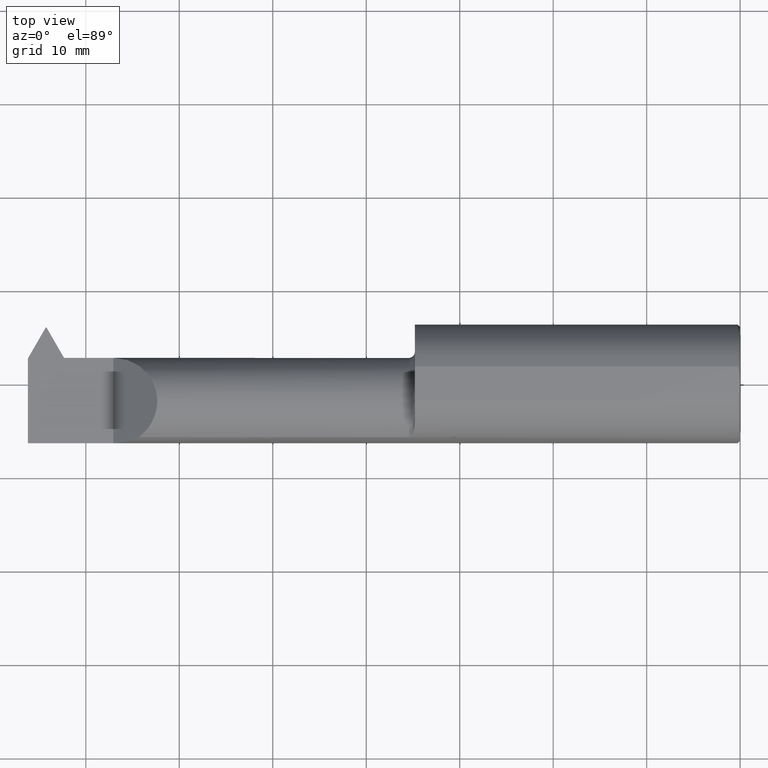
[diagram: clean part render]
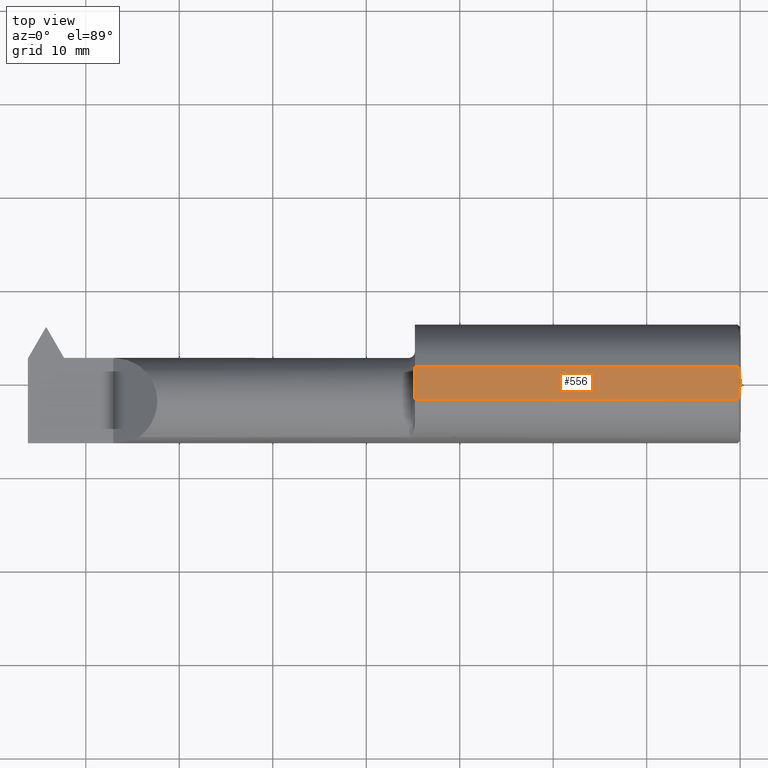
[diagram: same view with one face highlighted and labeled with its STEP entity id]
A machine part, top view. The second image highlights one B-rep face of the part: STEP entity #556.
In plain terms, the highlighted planar face has unit normal (-0, 0, -1).
Its self-contained STEP definition (entity closure, byte-faithful):
#6 = EDGE_CURVE ( 'NONE', #542, #715, #551, .T. ) ;
#17 = VECTOR ( 'NONE', #572, 39.37007874015748143 ) ;
#20 = CARTESIAN_POINT ( 'NONE',  ( -0.009999999999999620304, 0.06997856814768398104, 0.2398500000000000076 ) ) ;
#95 = LINE ( 'NONE', #445, #17 ) ;
#100 = VERTEX_POINT ( 'NONE', #20 ) ;
#165 = CARTESIAN_POINT ( 'NONE',  ( 5.733229207650684486E-16, 0.01185524990370578555, 0.2398500000000000631 ) ) ;
#168 = CARTESIAN_POINT ( 'NONE',  ( -6.745148754278355005E-33, 3.731796911060679279E-16, 0.2398500000000000631 ) ) ;
#169 = CARTESIAN_POINT ( 'NONE',  ( -0.004312611582161834413, 0.04712320684214399424, 0.2398500000000000631 ) ) ;
#208 = EDGE_CURVE ( 'NONE', #386, #561, #434, .T. ) ;
#222 = VECTOR ( 'NONE', #361, 39.37007874015748143 ) ;
#230 = CARTESIAN_POINT ( 'NONE',  ( -0.006805225572346869367, -0.05857201308550646218, 0.2398500000000000631 ) ) ;
#234 = CARTESIAN_POINT ( 'NONE',  ( -0.0008810604711147574731, -0.02359329477404692454, 0.2398500000000000631 ) ) ;
#255 = DIRECTION ( 'NONE',  ( 9.422009876951564852E-18, 1.000000000000000000, 1.242426775361223693E-16 ) ) ;
#265 = EDGE_CURVE ( 'NONE', #100, #561, #95, .T. ) ;
#300 = DIRECTION ( 'NONE',  ( 0.000000000000000000, 1.000000000000000000, 1.242426775361223693E-16 ) ) ;
#306 = ORIENTED_EDGE ( 'NONE', *, *, #367, .T. ) ;
#361 = DIRECTION ( 'NONE',  ( 1.000000000000000000, 1.224646799147351482E-16, -0.000000000000000000 ) ) ;
#367 = EDGE_CURVE ( 'NONE', #386, #542, #761, .T. ) ;
#386 = VERTEX_POINT ( 'NONE', #584 ) ;
#394 = ORIENTED_EDGE ( 'NONE', *, *, #265, .T. ) ;
#405 = CARTESIAN_POINT ( 'NONE',  ( -0.006819279375477977842, 0.05862219048703239122, 0.2398500000000000631 ) ) ;
#434 = LINE ( 'NONE', #670, #559 ) ;
#441 = PLANE ( 'NONE',  #593 ) ;
#445 = CARTESIAN_POINT ( 'NONE',  ( -3.000000000000000444, 0.06997856814768362022, 0.2398500000000000076 ) ) ;
#455 = EDGE_CURVE ( 'NONE', #715, #100, #597, .T. ) ;
#466 = CARTESIAN_POINT ( 'NONE',  ( -6.745148754278355005E-33, 3.731796911060679279E-16, 0.2398500000000000631 ) ) ;
#471 = EDGE_LOOP ( 'NONE', ( #518, #306, #529, #629, #394 ) ) ;
#484 = CARTESIAN_POINT ( 'NONE',  ( 5.670118583529476481E-16, -0.01184236993541490715, 0.2398500000000000631 ) ) ;
#518 = ORIENTED_EDGE ( 'NONE', *, *, #208, .F. ) ;
#529 = ORIENTED_EDGE ( 'NONE', *, *, #6, .T. ) ;
#541 = CARTESIAN_POINT ( 'NONE',  ( -1.370000000000000329, 0.06997856814768398104, 0.2398500000000000631 ) ) ;
#542 = VERTEX_POINT ( 'NONE', #672 ) ;
#551 = B_SPLINE_CURVE_WITH_KNOTS ( 'NONE', 3,
 ( #772, #230, #706, #234, #484, #717 ),
 .UNSPECIFIED., .F., .F.,
 ( 4, 2, 4 ),
 ( 0.002885180213238182530, 0.003779531270658953619, 0.004673882328079724709 ),
 .UNSPECIFIED. ) ;
#556 = ADVANCED_FACE ( 'NONE', ( #662 ), #441, .F. ) ;
#559 = VECTOR ( 'NONE', #255, 39.37007874015748143 ) ;
#561 = VERTEX_POINT ( 'NONE', #541 ) ;
#572 = DIRECTION ( 'NONE',  ( -1.000000000000000000, -1.224646799147351482E-16, 0.000000000000000000 ) ) ;
#584 = CARTESIAN_POINT ( 'NONE',  ( -1.370000000000000329, -0.06997856814768335654, 0.2398500000000000076 ) ) ;
#593 = AXIS2_PLACEMENT_3D ( 'NONE', #686, #627, #300 ) ;
#597 = B_SPLINE_CURVE_WITH_KNOTS ( 'NONE', 3,
 ( #466, #165, #705, #169, #405, #639 ),
 .UNSPECIFIED., .F., .F.,
 ( 4, 2, 4 ),
 ( 0.004673882328079724709, 0.005569206097324461147, 0.006464529866569197585 ),
 .UNSPECIFIED. ) ;
#627 = DIRECTION ( 'NONE',  ( -1.930110689171018520E-33, 1.242426775361223693E-16, -1.000000000000000000 ) ) ;
#629 = ORIENTED_EDGE ( 'NONE', *, *, #455, .T. ) ;
#639 = CARTESIAN_POINT ( 'NONE',  ( -0.009999999999999620304, 0.06997856814768398104, 0.2398500000000000076 ) ) ;
#662 = FACE_OUTER_BOUND ( 'NONE', #471, .T. ) ;
#670 = CARTESIAN_POINT ( 'NONE',  ( -1.370000000000000329, 0.2748500000000003718, 0.2398500000000001187 ) ) ;
#672 = CARTESIAN_POINT ( 'NONE',  ( -0.009999999999999620304, -0.06997856814768317613, 0.2398500000000000076 ) ) ;
#686 = CARTESIAN_POINT ( 'NONE',  ( -3.000000000000000444, 0.2748500000000003718, 0.2398500000000001187 ) ) ;
#705 = CARTESIAN_POINT ( 'NONE',  ( -0.0009000473449531467326, 0.02378657236894430108, 0.2398500000000001464 ) ) ;
#706 = CARTESIAN_POINT ( 'NONE',  ( -0.004274624415783890262, -0.04692581729597353202, 0.2398500000000001464 ) ) ;
#715 = VERTEX_POINT ( 'NONE', #168 ) ;
#717 = CARTESIAN_POINT ( 'NONE',  ( -6.745148754278355005E-33, 3.731796911060679279E-16, 0.2398500000000000631 ) ) ;
#755 = CARTESIAN_POINT ( 'NONE',  ( -3.000000000000000444, -0.06997856814768355083, 0.2398500000000000076 ) ) ;
#761 = LINE ( 'NONE', #755, #222 ) ;
#772 = CARTESIAN_POINT ( 'NONE',  ( -0.009999999999999620304, -0.06997856814768317613, 0.2398500000000000076 ) ) ;